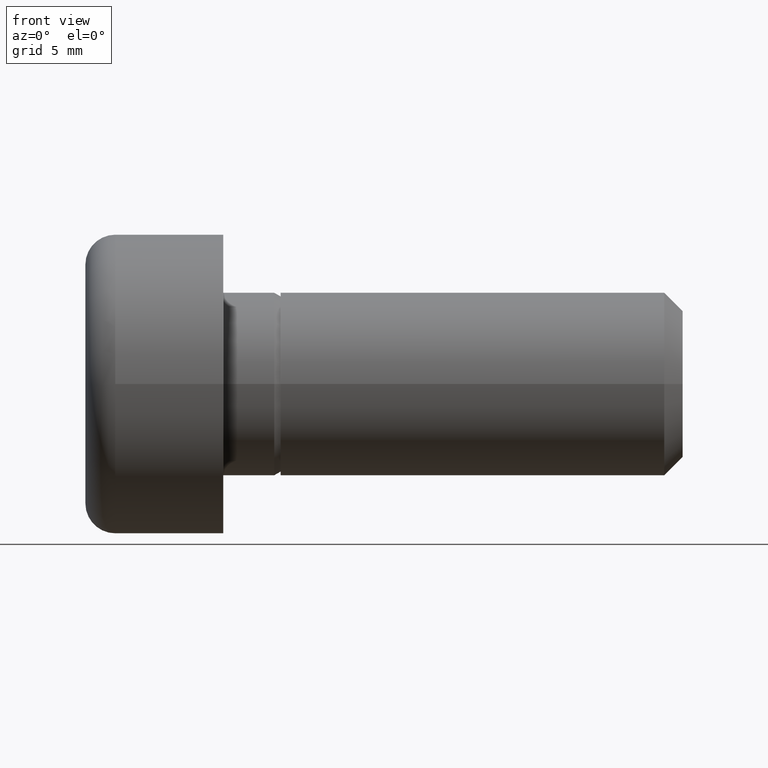
[diagram: clean part render]
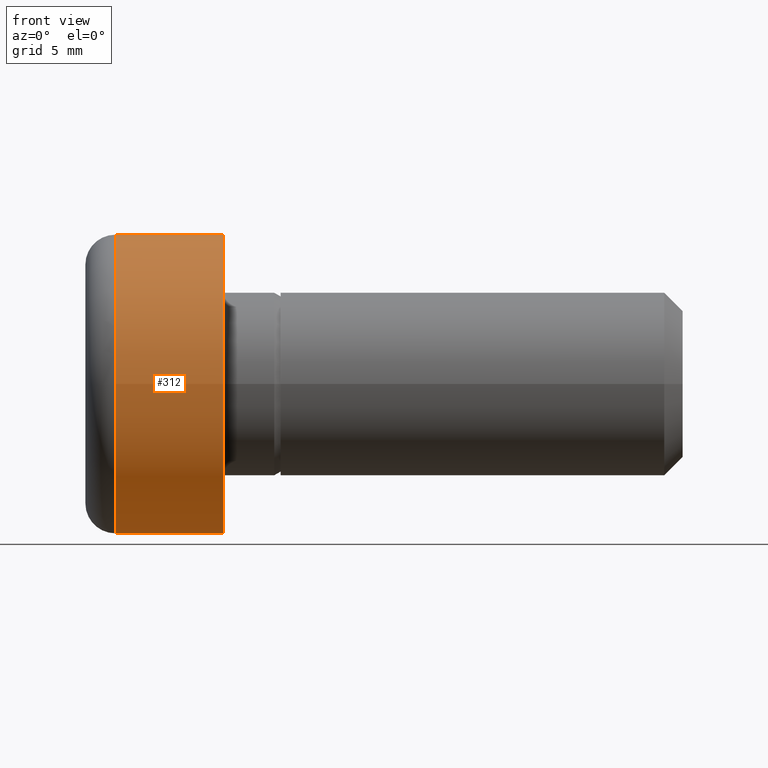
[diagram: same view with one face highlighted and labeled with its STEP entity id]
A machine part, front view. The second image highlights one B-rep face of the part: STEP entity #312.
In plain terms, the highlighted cylindrical surface (bore or boss wall) has radius 6.5 mm, axis along (1, 0, 0).
Its self-contained STEP definition (entity closure, byte-faithful):
#15=CYLINDRICAL_SURFACE('',#355,6.5);
#24=CIRCLE('',#351,6.5);
#25=CIRCLE('',#352,6.5);
#26=CIRCLE('',#353,6.5);
#28=CIRCLE('',#356,6.5);
#29=CIRCLE('',#357,6.5);
#54=FACE_OUTER_BOUND('',#72,.T.);
#72=EDGE_LOOP('',(#252,#253,#254,#255,#256,#257,#258));
#95=LINE('',#545,#113);
#113=VECTOR('',#428,6.5);
#141=VERTEX_POINT('',#533);
#142=VERTEX_POINT('',#534);
#143=VERTEX_POINT('',#536);
#144=VERTEX_POINT('',#541);
#145=VERTEX_POINT('',#542);
#180=EDGE_CURVE('',#141,#142,#24,.T.);
#181=EDGE_CURVE('',#143,#141,#25,.T.);
#182=EDGE_CURVE('',#142,#143,#26,.T.);
#184=EDGE_CURVE('',#144,#145,#28,.T.);
#185=EDGE_CURVE('',#145,#144,#29,.T.);
#186=EDGE_CURVE('',#145,#143,#95,.T.);
#252=ORIENTED_EDGE('',*,*,#184,.F.);
#253=ORIENTED_EDGE('',*,*,#185,.F.);
#254=ORIENTED_EDGE('',*,*,#186,.T.);
#255=ORIENTED_EDGE('',*,*,#181,.T.);
#256=ORIENTED_EDGE('',*,*,#180,.T.);
#257=ORIENTED_EDGE('',*,*,#182,.T.);
#258=ORIENTED_EDGE('',*,*,#186,.F.);
#312=ADVANCED_FACE('',(#54),#15,.T.);
#351=AXIS2_PLACEMENT_3D('',#535,#414,#415);
#352=AXIS2_PLACEMENT_3D('',#537,#416,#417);
#353=AXIS2_PLACEMENT_3D('',#538,#418,#419);
#355=AXIS2_PLACEMENT_3D('',#540,#422,#423);
#356=AXIS2_PLACEMENT_3D('',#543,#424,#425);
#357=AXIS2_PLACEMENT_3D('',#544,#426,#427);
#414=DIRECTION('center_axis',(1.,2.29334027171402E-33,0.));
#415=DIRECTION('ref_axis',(0.,1.,0.));
#416=DIRECTION('center_axis',(1.,2.29334027171402E-33,0.));
#417=DIRECTION('ref_axis',(0.,1.,0.));
#418=DIRECTION('center_axis',(1.,2.29334027171402E-33,0.));
#419=DIRECTION('ref_axis',(0.,1.,0.));
#422=DIRECTION('center_axis',(1.,2.29334027171402E-33,0.));
#423=DIRECTION('ref_axis',(0.,1.,0.));
#424=DIRECTION('center_axis',(1.,2.29334027171402E-33,0.));
#425=DIRECTION('ref_axis',(0.,1.,0.));
#426=DIRECTION('center_axis',(1.,2.29334027171402E-33,0.));
#427=DIRECTION('ref_axis',(0.,1.,0.));
#428=DIRECTION('',(-1.,-2.29334027171402E-33,0.));
#533=CARTESIAN_POINT('',(1.3,6.5,0.));
#534=CARTESIAN_POINT('',(1.3,-7.9602041944578E-16,6.5));
#535=CARTESIAN_POINT('Origin',(1.3,-7.33868886948485E-33,0.));
#536=CARTESIAN_POINT('',(1.3,-6.5,-7.9602041944578E-16));
#537=CARTESIAN_POINT('Origin',(1.3,-7.33868886948485E-33,0.));
#538=CARTESIAN_POINT('Origin',(1.3,-7.33868886948485E-33,0.));
#540=CARTESIAN_POINT('Origin',(3.65,-1.94933923095692E-33,0.));
#541=CARTESIAN_POINT('',(6.,6.5,0.));
#542=CARTESIAN_POINT('',(6.,-6.5,-7.9602041944578E-16));
#543=CARTESIAN_POINT('Origin',(6.,3.44001040757102E-33,0.));
#544=CARTESIAN_POINT('Origin',(6.,3.44001040757102E-33,0.));
#545=CARTESIAN_POINT('',(3.65,-6.5,-7.9602041944578E-16));